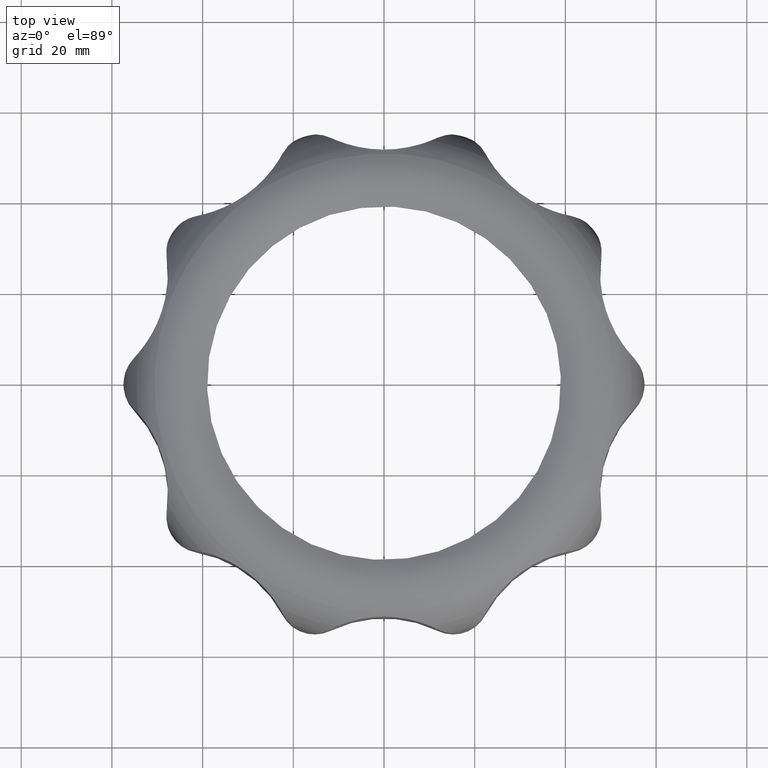
[diagram: clean part render]
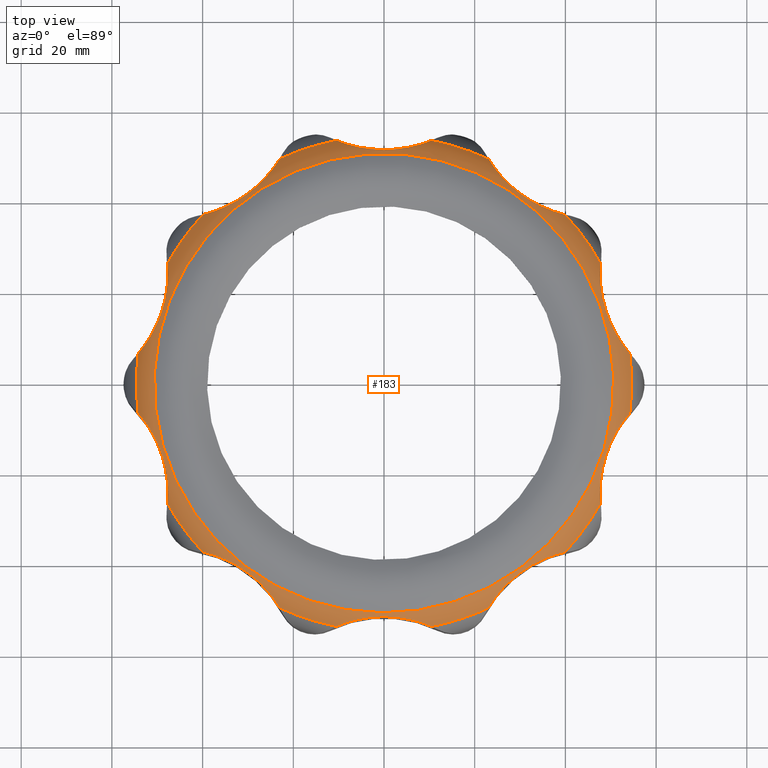
[diagram: same view with one face highlighted and labeled with its STEP entity id]
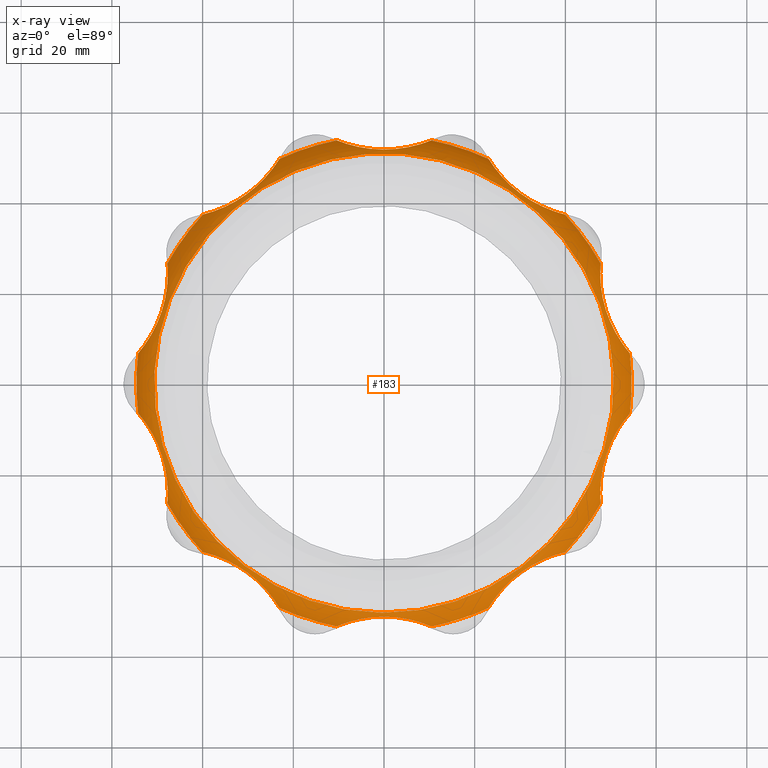
[diagram: x-ray of the same camera — body ghosted, the highlighted face saturated]
A machine part, top view. The second image highlights one B-rep face of the part: STEP entity #183.
The next image is the same camera in x-ray: the body ghosted, the highlighted face saturated — about 0% of this face is hidden behind the body in this view.
In plain terms, the highlighted toroidal blend (fillet) surface has major radius 41.9731 mm and minor (blend) radius 15 mm.
Its self-contained STEP definition (entity closure, byte-faithful):
#183 = ADVANCED_FACE( '', ( #2450, #2451 ), #2452, .T. );
#2450 = FACE_OUTER_BOUND( '', #6750, .T. );
#2451 = FACE_OUTER_BOUND( '', #6751, .T. );
#2452 = TOROIDAL_SURFACE( '', #6752, 41.9730830551567, 15.0000000000000 );
#6750 = EDGE_LOOP( '', ( #13595 ) );
#6751 = EDGE_LOOP( '', ( #13596, #13597, #13598, #13599, #13600, #13601, #13602, #13603, #13604, #13605, #13606, #13607, #13608, #13609, #13610, #13611, #13612, #13613, #13614, #13615 ) );
#6752 = AXIS2_PLACEMENT_3D( '', #13616, #13617, #13618 );
#13595 = ORIENTED_EDGE( '', *, *, #31998, .F. );
#13596 = ORIENTED_EDGE( '', *, *, #31940, .F. );
#13597 = ORIENTED_EDGE( '', *, *, #31928, .T. );
#13598 = ORIENTED_EDGE( '', *, *, #31997, .F. );
#13599 = ORIENTED_EDGE( '', *, *, #31999, .T. );
#13600 = ORIENTED_EDGE( '', *, *, #31993, .F. );
#13601 = ORIENTED_EDGE( '', *, *, #32000, .T. );
#13602 = ORIENTED_EDGE( '', *, *, #31986, .F. );
#13603 = ORIENTED_EDGE( '', *, *, #32001, .T. );
#13604 = ORIENTED_EDGE( '', *, *, #31978, .F. );
#13605 = ORIENTED_EDGE( '', *, *, #32002, .T. );
#13606 = ORIENTED_EDGE( '', *, *, #31970, .F. );
#13607 = ORIENTED_EDGE( '', *, *, #32003, .T. );
#13608 = ORIENTED_EDGE( '', *, *, #31962, .F. );
#13609 = ORIENTED_EDGE( '', *, *, #32004, .T. );
#13610 = ORIENTED_EDGE( '', *, *, #31954, .F. );
#13611 = ORIENTED_EDGE( '', *, *, #32005, .T. );
#13612 = ORIENTED_EDGE( '', *, *, #31947, .F. );
#13613 = ORIENTED_EDGE( '', *, *, #31933, .T. );
#13614 = ORIENTED_EDGE( '', *, *, #31946, .F. );
#13615 = ORIENTED_EDGE( '', *, *, #31919, .T. );
#13616 = CARTESIAN_POINT( '', ( 0.000000000000000, 0.000000000000000, -12.3384222550688 ) );
#13617 = DIRECTION( '', ( 1.89212087375327E-017, -5.82334926349610E-017, 1.00000000000000 ) );
#13618 = DIRECTION( '', ( 0.309016994374947, -0.951056516295154, -6.12303176911189E-017 ) );
#31919 = EDGE_CURVE( '', #40255, #40253, #40256, .T. );
#31928 = EDGE_CURVE( '', #40265, #40270, #40272, .T. );
#31933 = EDGE_CURVE( '', #40274, #40279, #40281, .T. );
#31940 = EDGE_CURVE( '', #40265, #40253, #40290, .T. );
#31946 = EDGE_CURVE( '', #40255, #40279, #40298, .T. );
#31947 = EDGE_CURVE( '', #40274, #40299, #40300, .T. );
#31954 = EDGE_CURVE( '', #40308, #40310, #40311, .T. );
#31962 = EDGE_CURVE( '', #40322, #40324, #40325, .T. );
#31970 = EDGE_CURVE( '', #40336, #40338, #40339, .T. );
#31978 = EDGE_CURVE( '', #40350, #40352, #40353, .T. );
#31986 = EDGE_CURVE( '', #40364, #40366, #40367, .T. );
#31993 = EDGE_CURVE( '', #40375, #40377, #40378, .T. );
#31997 = EDGE_CURVE( '', #40381, #40270, #40383, .T. );
#31998 = EDGE_CURVE( '', #40384, #40384, #40385, .T. );
#31999 = EDGE_CURVE( '', #40381, #40377, #40386, .T. );
#32000 = EDGE_CURVE( '', #40375, #40366, #40387, .T. );
#32001 = EDGE_CURVE( '', #40364, #40352, #40388, .T. );
#32002 = EDGE_CURVE( '', #40350, #40338, #40389, .T. );
#32003 = EDGE_CURVE( '', #40336, #40324, #40390, .T. );
#32004 = EDGE_CURVE( '', #40322, #40310, #40391, .T. );
#32005 = EDGE_CURVE( '', #40308, #40299, #40392, .T. );
#40253 = VERTEX_POINT( '', #57477 );
#40255 = VERTEX_POINT( '', #57482 );
#40256 = CIRCLE( '', #57483, 54.6040716320937 );
#40265 = VERTEX_POINT( '', #57539 );
#40270 = VERTEX_POINT( '', #57569 );
#40272 = CIRCLE( '', #57574, 54.6040716320937 );
#40274 = VERTEX_POINT( '', #57576 );
#40279 = VERTEX_POINT( '', #57606 );
#40281 = CIRCLE( '', #57611, 54.6040716320937 );
#40290 = B_SPLINE_CURVE_WITH_KNOTS( '', 3, ( #57657, #57658, #57659, #57660, #57661, #57662, #57663, #57664, #57665, #57666, #57667, #57668, #57669, #57670, #57671, #57672, #57673, #57674, #57675, #57676, #57677, #57678, #57679, #57680, #57681 ), .UNSPECIFIED., .F., .F., ( 4, 2, 2, 2, 2, 2, 1, 2, 2, 2, 2, 2, 4 ), ( 2.99828317109704E-007, 0.00285867238819549, 0.00428785866813469, 0.00571704494807388, 0.00857541750795226, 0.0100046037878915, 0.0114337900678306, 0.0128629763477698, 0.0142921626277090, 0.0171505351875874, 0.0185797214675266, 0.0200089077474658, 0.0228672803073442 ), .UNSPECIFIED. );
#40298 = B_SPLINE_CURVE_WITH_KNOTS( '', 3, ( #57714, #57715, #57716, #57717, #57718, #57719, #57720, #57721, #57722, #57723, #57724, #57725, #57726, #57727, #57728, #57729, #57730, #57731, #57732, #57733, #57734, #57735, #57736, #57737, #57738 ), .UNSPECIFIED., .F., .F., ( 4, 2, 2, 2, 2, 2, 1, 2, 2, 2, 2, 2, 4 ), ( 2.99828333229095E-007, 0.00285867205690382, 0.00428785817118912, 0.00571704428547441, 0.00857541651404502, 0.0100046026283303, 0.0114337887426156, 0.0128629748569010, 0.0142921609711863, 0.0171505331997569, 0.0185797193140422, 0.0200089054283275, 0.0228672776568981 ), .UNSPECIFIED. );
#40299 = VERTEX_POINT( '', #57739 );
#40300 = B_SPLINE_CURVE_WITH_KNOTS( '', 3, ( #57740, #57741, #57742, #57743, #57744, #57745, #57746, #57747, #57748, #57749, #57750, #57751, #57752, #57753, #57754, #57755, #57756, #57757, #57758, #57759, #57760, #57761, #57762, #57763, #57764 ), .UNSPECIFIED., .F., .F., ( 4, 2, 2, 2, 2, 2, 1, 2, 2, 2, 2, 2, 4 ), ( 2.99828333195303E-007, 0.00285867205690378, 0.00428785817118908, 0.00571704428547437, 0.00857541651404497, 0.0100046026283303, 0.0114337887426156, 0.0128629748569009, 0.0142921609711862, 0.0171505331997567, 0.0185797193140420, 0.0200089054283273, 0.0228672776568979 ), .UNSPECIFIED. );
#40308 = VERTEX_POINT( '', #57799 );
#40310 = VERTEX_POINT( '', #57804 );
#40311 = B_SPLINE_CURVE_WITH_KNOTS( '', 3, ( #57805, #57806, #57807, #57808, #57809, #57810, #57811, #57812, #57813, #57814, #57815, #57816, #57817, #57818, #57819, #57820, #57821, #57822, #57823, #57824, #57825, #57826, #57827, #57828, #57829 ), .UNSPECIFIED., .F., .F., ( 4, 2, 2, 2, 2, 2, 1, 2, 2, 2, 2, 2, 4 ), ( 2.99828317473172E-007, 0.00285867238819582, 0.00428785866813500, 0.00571704494807418, 0.00857541750795254, 0.0100046037878917, 0.0114337900678309, 0.0128629763477701, 0.0142921626277093, 0.0171505351875876, 0.0185797214675268, 0.0200089077474659, 0.0228672803073443 ), .UNSPECIFIED. );
#40322 = VERTEX_POINT( '', #57900 );
#40324 = VERTEX_POINT( '', #57905 );
#40325 = B_SPLINE_CURVE_WITH_KNOTS( '', 3, ( #57906, #57907, #57908, #57909, #57910, #57911, #57912, #57913, #57914, #57915, #57916, #57917, #57918, #57919, #57920, #57921, #57922, #57923, #57924, #57925, #57926, #57927, #57928, #57929, #57930 ), .UNSPECIFIED., .F., .F., ( 4, 2, 2, 2, 2, 2, 1, 2, 2, 2, 2, 2, 4 ), ( 2.99828322793871E-007, 0.00285867227384115, 0.00428785849660033, 0.00571704471935950, 0.00857541716487784, 0.0100046033876370, 0.0114337896103962, 0.0128629758331553, 0.0142921620559145, 0.0171505345014329, 0.0185797207241921, 0.0200089069469512, 0.0228672793924696 ), .UNSPECIFIED. );
#40336 = VERTEX_POINT( '', #58001 );
#40338 = VERTEX_POINT( '', #58006 );
#40339 = B_SPLINE_CURVE_WITH_KNOTS( '', 3, ( #58007, #58008, #58009, #58010, #58011, #58012, #58013, #58014, #58015, #58016, #58017, #58018, #58019, #58020, #58021, #58022, #58023, #58024, #58025, #58026, #58027, #58028, #58029, #58030, #58031 ), .UNSPECIFIED., .F., .F., ( 4, 2, 2, 2, 2, 2, 1, 2, 2, 2, 2, 2, 4 ), ( 2.99828316993370E-007, 0.00285867238819534, 0.00428785866813452, 0.00571704494807370, 0.00857541750795205, 0.0100046037878912, 0.0114337900678304, 0.0128629763477696, 0.0142921626277088, 0.0171505351875872, 0.0185797214675263, 0.0200089077474655, 0.0228672803073439 ), .UNSPECIFIED. );
#40350 = VERTEX_POINT( '', #58102 );
#40352 = VERTEX_POINT( '', #58107 );
#40353 = B_SPLINE_CURVE_WITH_KNOTS( '', 3, ( #58108, #58109, #58110, #58111, #58112, #58113, #58114, #58115, #58116, #58117, #58118, #58119, #58120, #58121, #58122, #58123, #58124, #58125, #58126, #58127, #58128, #58129, #58130, #58131, #58132 ), .UNSPECIFIED., .F., .F., ( 4, 2, 2, 2, 2, 2, 1, 2, 2, 2, 2, 2, 4 ), ( 2.99828333299476E-007, 0.00285867205690388, 0.00428785817118916, 0.00571704428547445, 0.00857541651404503, 0.0100046026283303, 0.0114337887426156, 0.0128629748569009, 0.0142921609711862, 0.0171505331997568, 0.0185797193140421, 0.0200089054283274, 0.0228672776568980 ), .UNSPECIFIED. );
#40364 = VERTEX_POINT( '', #58203 );
#40366 = VERTEX_POINT( '', #58208 );
#40367 = B_SPLINE_CURVE_WITH_KNOTS( '', 3, ( #58209, #58210, #58211, #58212, #58213, #58214, #58215, #58216, #58217, #58218, #58219, #58220, #58221, #58222, #58223, #58224, #58225, #58226, #58227, #58228, #58229, #58230, #58231, #58232, #58233 ), .UNSPECIFIED., .F., .F., ( 4, 2, 2, 2, 2, 2, 1, 2, 2, 2, 2, 2, 4 ), ( 2.99828333283905E-007, 0.00285867205690388, 0.00428785817118917, 0.00571704428547447, 0.00857541651404507, 0.0100046026283304, 0.0114337887426157, 0.0128629748569010, 0.0142921609711863, 0.0171505331997569, 0.0185797193140422, 0.0200089054283275, 0.0228672776568981 ), .UNSPECIFIED. );
#40375 = VERTEX_POINT( '', #58268 );
#40377 = VERTEX_POINT( '', #58273 );
#40378 = B_SPLINE_CURVE_WITH_KNOTS( '', 3, ( #58274, #58275, #58276, #58277, #58278, #58279, #58280, #58281, #58282, #58283, #58284, #58285, #58286, #58287, #58288, #58289, #58290, #58291, #58292, #58293, #58294, #58295, #58296, #58297, #58298 ), .UNSPECIFIED., .F., .F., ( 4, 2, 2, 2, 2, 2, 1, 2, 2, 2, 2, 2, 4 ), ( 2.99828317284512E-007, 0.00285867238819566, 0.00428785866813485, 0.00571704494807404, 0.00857541750795241, 0.0100046037878916, 0.0114337900678308, 0.0128629763477700, 0.0142921626277092, 0.0171505351875875, 0.0185797214675267, 0.0200089077474659, 0.0228672803073442 ), .UNSPECIFIED. );
#40381 = VERTEX_POINT( '', #58305 );
#40383 = B_SPLINE_CURVE_WITH_KNOTS( '', 3, ( #58310, #58311, #58312, #58313, #58314, #58315, #58316, #58317, #58318, #58319, #58320, #58321, #58322, #58323, #58324, #58325, #58326, #58327, #58328, #58329, #58330, #58331, #58332, #58333, #58334 ), .UNSPECIFIED., .F., .F., ( 4, 2, 2, 2, 2, 2, 1, 2, 2, 2, 2, 2, 4 ), ( 2.99828322700906E-007, 0.00285867227384097, 0.00428785849660011, 0.00571704471935925, 0.00857541716487752, 0.0100046033876367, 0.0114337896103958, 0.0128629758331550, 0.0142921620559141, 0.0171505345014324, 0.0185797207241916, 0.0200089069469507, 0.0228672793924690 ), .UNSPECIFIED. );
#40384 = VERTEX_POINT( '', #58335 );
#40385 = CIRCLE( '', #58336, 50.6578461129477 );
#40386 = CIRCLE( '', #58337, 54.6040716320937 );
#40387 = CIRCLE( '', #58338, 54.6040716320937 );
#40388 = CIRCLE( '', #58339, 54.6040716320937 );
#40389 = CIRCLE( '', #58340, 54.6040716320937 );
#40390 = CIRCLE( '', #58341, 54.6040716320937 );
#40391 = CIRCLE( '', #58342, 54.6040716320937 );
#40392 = CIRCLE( '', #58343, 54.6040716320937 );
#57477 = CARTESIAN_POINT( '', ( -47.7500747064636, 26.4865060800775, -4.24780252792265 ) );
#57482 = CARTESIAN_POINT( '', ( -39.9457480309389, 37.2282399940097, -4.24780252792265 ) );
#57483 = AXIS2_PLACEMENT_3D( '', #74403, #74404, #74405 );
#57539 = CARTESIAN_POINT( '', ( -54.1989996147472, 6.63875587466972, -4.24780252792270 ) );
#57569 = CARTESIAN_POINT( '', ( -54.1989995510681, -6.63875639454662, -4.24780252792270 ) );
#57574 = AXIS2_PLACEMENT_3D( '', #74409, #74410, #74411 );
#57576 = CARTESIAN_POINT( '', ( -10.4345788473336, 53.5978003567461, -4.24780252792265 ) );
#57606 = CARTESIAN_POINT( '', ( -23.0622449883734, 49.4948229100689, -4.24780252792270 ) );
#57611 = AXIS2_PLACEMENT_3D( '', #74412, #74413, #74414 );
#57657 = CARTESIAN_POINT( '', ( -54.1989996147471, 6.63875587466962, -4.24780252792266 ) );
#57658 = CARTESIAN_POINT( '', ( -53.7208593773604, 7.19396318632844, -3.61225612978648 ) );
#57659 = CARTESIAN_POINT( '', ( -53.2258120750429, 7.81470778294330, -3.08240889827171 ) );
#57660 = CARTESIAN_POINT( '', ( -52.4869430204636, 8.84273924504710, -2.41506273051538 ) );
#57661 = CARTESIAN_POINT( '', ( -52.2411665023909, 9.20165250428702, -2.21406914540625 ) );
#57662 = CARTESIAN_POINT( '', ( -51.7546376443555, 9.95262237334967, -1.85187803921903 ) );
#57663 = CARTESIAN_POINT( '', ( -51.5160411823993, 10.3415414595720, -1.69238300752714 ) );
#57664 = CARTESIAN_POINT( '', ( -50.8268523663201, 11.5329975792222, -1.27634069070289 ) );
#57665 = CARTESIAN_POINT( '', ( -50.3990291374893, 12.3659591733891, -1.07842472565419 ) );
#57666 = CARTESIAN_POINT( '', ( -49.8145796051292, 13.6731543022218, -0.880968779001265 ) );
#57667 = CARTESIAN_POINT( '', ( -49.6298534703620, 14.1176184552537, -0.832260588293812 ) );
#57668 = CARTESIAN_POINT( '', ( -49.2863123656773, 15.0106939058685, -0.768070653094223 ) );
#57669 = CARTESIAN_POINT( '', ( -48.9670044950927, 15.9115622100118, -0.736511588674265 ) );
#57670 = CARTESIAN_POINT( '', ( -48.6959349621179, 16.8279455449999, -0.768170203724751 ) );
#57671 = CARTESIAN_POINT( '', ( -48.4490758183094, 17.7521143826681, -0.832431800201938 ) );
#57672 = CARTESIAN_POINT( '', ( -48.3373340729019, 18.2201554525791, -0.881169731565907 ) );
#57673 = CARTESIAN_POINT( '', ( -48.0419930624103, 19.6207848217477, -1.07867686076916 ) );
#57674 = CARTESIAN_POINT( '', ( -47.8993609645618, 20.5421159972955, -1.27614566043670 ) );
#57675 = CARTESIAN_POINT( '', ( -47.7572770269267, 21.8995493180484, -1.68770865475104 ) );
#57676 = CARTESIAN_POINT( '', ( -47.7219165916782, 22.3478777835021, -1.84432545056509 ) );
#57677 = CARTESIAN_POINT( '', ( -47.6736849582215, 23.2344720828580, -2.20192377785726 ) );
#57678 = CARTESIAN_POINT( '', ( -47.6608344745040, 23.6753755234067, -2.40434584921162 ) );
#57679 = CARTESIAN_POINT( '', ( -47.6534740702648, 24.9578987505158, -3.07820527410415 ) );
#57680 = CARTESIAN_POINT( '', ( -47.6895740516455, 25.7560517842055, -3.61204866731732 ) );
#57681 = CARTESIAN_POINT( '', ( -47.7500747064636, 26.4865060800774, -4.24780252792283 ) );
#57714 = CARTESIAN_POINT( '', ( -39.9457480309388, 37.2282399940096, -4.24780252792273 ) );
#57715 = CARTESIAN_POINT( '', ( -39.2325818435899, 37.3963683786605, -3.61225623756197 ) );
#57716 = CARTESIAN_POINT( '', ( -38.4672157220130, 37.6075798105957, -3.08240909394329 ) );
#57717 = CARTESIAN_POINT( '', ( -37.2651965053875, 38.0049783946130, -2.41506303452085 ) );
#57718 = CARTESIAN_POINT( '', ( -36.8553952540020, 38.1508815033014, -2.21406948155710 ) );
#57719 = CARTESIAN_POINT( '', ( -36.0203762298607, 38.4724543852560, -1.85187843240963 ) );
#57720 = CARTESIAN_POINT( '', ( -35.5987467808562, 38.6468530451579, -1.69238342230856 ) );
#57721 = CARTESIAN_POINT( '', ( -34.3408611304174, 39.2056662335607, -1.27634116394998 ) );
#57722 = CARTESIAN_POINT( '', ( -33.5051424304037, 39.6280780963526, -1.07842522537797 ) );
#57723 = CARTESIAN_POINT( '', ( -32.2639629646110, 40.3420902754959, -0.880969304483962 ) );
#57724 = CARTESIAN_POINT( '', ( -31.8532669516743, 40.5930900061404, -0.832261118830795 ) );
#57725 = CARTESIAN_POINT( '', ( -31.0503998700153, 41.1136747708888, -0.768071190912752 ) );
#57726 = CARTESIAN_POINT( '', ( -30.2625573612004, 41.6548080181250, -0.736512130200482 ) );
#57727 = CARTESIAN_POINT( '', ( -29.5046209784071, 42.2368469597008, -0.768170741320444 ) );
#57728 = CARTESIAN_POINT( '', ( -28.7616950066976, 42.8394150081525, -0.832432329117783 ) );
#57729 = CARTESIAN_POINT( '', ( -28.3961864425053, 43.1523879892437, -0.881170252806051 ) );
#57730 = CARTESIAN_POINT( '', ( -27.3339813480271, 44.1119237457907, -1.07867735882224 ) );
#57731 = CARTESIAN_POINT( '', ( -26.6770447355724, 44.7734591935037, -1.27614613505918 ) );
#57732 = CARTESIAN_POINT( '', ( -25.7642172049791, 45.7881308307465, -1.68770906925754 ) );
#57733 = CARTESIAN_POINT( '', ( -25.4720891759768, 46.1300517853723, -1.84432584079491 ) );
#57734 = CARTESIAN_POINT( '', ( -24.9119419563493, 46.8189716922229, -2.20192410745437 ) );
#57735 = CARTESIAN_POINT( '', ( -24.6423891799372, 47.1681166851854, -2.40434613946776 ) );
#57736 = CARTESIAN_POINT( '', ( -23.8825862716308, 48.2013733153394, -3.07820546500126 ) );
#57737 = CARTESIAN_POINT( '', ( -23.4426491943042, 48.8683116444404, -3.61204877552087 ) );
#57738 = CARTESIAN_POINT( '', ( -23.0622449883733, 49.4948229100688, -4.24780252792266 ) );
#57739 = CARTESIAN_POINT( '', ( 10.4345785727653, 53.5978004101999, -4.24780252792265 ) );
#57740 = CARTESIAN_POINT( '', ( -10.4345788473336, 53.5978003567460, -4.24780252792268 ) );
#57741 = CARTESIAN_POINT( '', ( -9.75879189551458, 53.3146305132700, -3.61225623756192 ) );
#57742 = CARTESIAN_POINT( '', ( -9.01545073000378, 53.0356332360526, -3.08240909394325 ) );
#57743 = CARTESIAN_POINT( '', ( -7.80941172724877, 52.6506062817367, -2.41506303452082 ) );
#57744 = CARTESIAN_POINT( '', ( -7.39211585438182, 52.5277692464001, -2.21406948155708 ) );
#57745 = CARTESIAN_POINT( '', ( -6.52755547449347, 52.2971153094865, -1.85187843240961 ) );
#57746 = CARTESIAN_POINT( '', ( -6.08394112406319, 52.1903792193588, -1.69238342230854 ) );
#57747 = CARTESIAN_POINT( '', ( -4.73782810347644, 51.9031019579550, -1.27634116394997 ) );
#57748 = CARTESIAN_POINT( '', ( -3.81343000854015, 51.7536172113817, -1.07842522537796 ) );
#57749 = CARTESIAN_POINT( '', ( -2.38960889800891, 51.6017182203520, -0.880969304483961 ) );
#57750 = CARTESIAN_POINT( '', ( -1.90981490382248, 51.5633802109053, -0.832261118830797 ) );
#57751 = CARTESIAN_POINT( '', ( -0.954289742988950, 51.5126287073441, -0.768071190912756 ) );
#57752 = CARTESIAN_POINT( '', ( 0.00115837791355045, 51.4873324976635, -0.736512130200489 ) );
#57753 = CARTESIAN_POINT( '', ( 0.956455698236572, 51.5127080696982, -0.768170741320448 ) );
#57754 = CARTESIAN_POINT( '', ( 1.91167604703434, 51.5635149363405, -0.832432329117789 ) );
#57755 = CARTESIAN_POINT( '', ( 2.39133958951040, 51.6018748556618, -0.881170252806061 ) );
#57756 = CARTESIAN_POINT( '', ( 3.81468252842222, 51.7538071072660, -1.07867735882225 ) );
#57757 = CARTESIAN_POINT( '', ( 4.73499619139598, 51.9028628790700, -1.27614613505920 ) );
#57758 = CARTESIAN_POINT( '', ( 6.06989819941344, 52.1872029237787, -1.68770906925756 ) );
#57759 = CARTESIAN_POINT( '', ( 6.50721083345099, 52.2921142418153, -1.84432584079492 ) );
#57760 = CARTESIAN_POINT( '', ( 7.36531641357042, 52.5202158838069, -2.20192410745438 ) );
#57761 = CARTESIAN_POINT( '', ( 7.78861146770855, 52.6442409720934, -2.40434613946776 ) );
#57762 = CARTESIAN_POINT( '', ( 9.01063793994747, 53.0335622075472, -3.07820546500125 ) );
#57763 = CARTESIAN_POINT( '', ( 9.75857102455508, 53.3145381278322, -3.61204877552088 ) );
#57764 = CARTESIAN_POINT( '', ( 10.4345785727653, 53.5978004101997, -4.24780252792266 ) );
#57799 = CARTESIAN_POINT( '', ( 23.0622442615783, 49.4948232487208, -4.24780252792265 ) );
#57804 = CARTESIAN_POINT( '', ( 39.9457489697509, 37.2282389866682, -4.24780252792270 ) );
#57805 = CARTESIAN_POINT( '', ( 23.0622442615782, 49.4948232487208, -4.24780252792253 ) );
#57806 = CARTESIAN_POINT( '', ( 23.4425243307903, 48.8685163634899, -3.61225612978635 ) );
#57807 = CARTESIAN_POINT( '', ( 23.8799094913349, 48.2058777688595, -3.08240889827161 ) );
#57808 = CARTESIAN_POINT( '', ( 24.6293024123214, 47.1854923432161, -2.41506273051531 ) );
#57809 = CARTESIAN_POINT( '', ( 24.8947000835386, 46.8408346861031, -2.21406914540619 ) );
#57810 = CARTESIAN_POINT( '', ( 25.4585691819059, 46.1460557904481, -1.85187803921898 ) );
#57811 = CARTESIAN_POINT( '', ( 25.7547228497490, 45.7989544618577, -1.69238300752710 ) );
#57812 = CARTESIAN_POINT( '', ( 26.6748938941818, 44.7753167533652, -1.27634069070287 ) );
#57813 = CARTESIAN_POINT( '', ( 27.3348827942465, 44.1110333919330, -1.07842472565417 ) );
#57814 = CARTESIAN_POINT( '', ( 28.3974943965452, 43.1512433402133, -0.880968779001262 ) );
#57815 = CARTESIAN_POINT( '', ( 28.7631214089038, 42.8382113673573, -0.832260588293807 ) );
#57816 = CARTESIAN_POINT( '', ( 29.5063265928792, 42.2355088656115, -0.768070653094224 ) );
#57817 = CARTESIAN_POINT( '', ( 30.2644317022608, 41.6534454148117, -0.736511588674269 ) );
#57818 = CARTESIAN_POINT( '', ( 31.0521989491518, 41.1124649409712, -0.768170203724755 ) );
#57819 = CARTESIAN_POINT( '', ( 31.8548520709039, 40.5921040627910, -0.832431800201941 ) );
#57820 = CARTESIAN_POINT( '', ( 32.2654554806669, 40.3411987007894, -0.881169731565909 ) );
#57821 = CARTESIAN_POINT( '', ( 33.5062677738897, 39.6274944236247, -1.07867686076916 ) );
#57822 = CARTESIAN_POINT( '', ( 34.3384300476073, 39.2071362423387, -1.27614566043669 ) );
#57823 = CARTESIAN_POINT( '', ( 35.5855194983877, 38.6525364159990, -1.68770865475102 ) );
#57824 = CARTESIAN_POINT( '', ( 36.0009782305462, 38.4803655265017, -1.84432545056507 ) );
#57825 = CARTESIAN_POINT( '', ( 36.8292751201236, 38.1605218071125, -2.20192377785724 ) );
#57826 = CARTESIAN_POINT( '', ( 37.2446281916564, 38.0120536125801, -2.40434584921158 ) );
#57827 = CARTESIAN_POINT( '', ( 38.4621057719207, 37.6087319727211, -3.07820527410409 ) );
#57828 = CARTESIAN_POINT( '', ( 39.2323499222066, 37.3964222395617, -3.61204866731723 ) );
#57829 = CARTESIAN_POINT( '', ( 39.9457489697509, 37.2282389866680, -4.24780252792271 ) );
#57900 = CARTESIAN_POINT( '', ( 47.7500748172108, 26.4865058804211, -4.24780252792270 ) );
#57905 = CARTESIAN_POINT( '', ( 54.1989995510679, 6.63875639454658, -4.24780252792270 ) );
#57906 = CARTESIAN_POINT( '', ( 47.7500748172111, 26.4865058804210, -4.24780252792283 ) );
#57907 = CARTESIAN_POINT( '', ( 47.6895939196522, 25.7562899681113, -3.61225616698829 ) );
#57908 = CARTESIAN_POINT( '', ( 47.6539567685353, 24.9631155617357, -3.08240896581328 ) );
#57909 = CARTESIAN_POINT( '', ( 47.6604608906761, 23.6971243502375, -2.41506283545137 ) );
#57910 = CARTESIAN_POINT( '', ( 47.6725874346356, 23.2622936279779, -2.21406926143810 ) );
#57911 = CARTESIAN_POINT( '', ( 47.7203863389860, 22.3687717900376, -1.85187817493972 ) );
#57912 = CARTESIAN_POINT( '', ( 47.7559586514067, 21.9138861744979, -1.69238315070048 ) );
#57913 = CARTESIAN_POINT( '', ( 47.8987135249565, 20.5448829567104, -1.27634085405726 ) );
#57914 = CARTESIAN_POINT( '', ( 48.0421998007444, 19.6195347247742, -1.07842489814771 ) );
#57915 = CARTESIAN_POINT( '', ( 48.3377202047876, 18.2184608944285, -0.880968960386169 ) );
#57916 = CARTESIAN_POINT( '', ( 48.4495230928806, 17.7503025604069, -0.832260771423346 ) );
#57917 = CARTESIAN_POINT( '', ( 48.6965290699234, 16.8258609839224, -0.768070838737172 ) );
#57918 = CARTESIAN_POINT( '', ( 48.9677206674672, 15.9093587944176, -0.736511775597011 ) );
#57919 = CARTESIAN_POINT( '', ( 49.2870574018003, 15.0086584652056, -0.768170389290752 ) );
#57920 = CARTESIAN_POINT( '', ( 49.6305569536754, 14.1158900419206, -0.832431982771837 ) );
#57921 = CARTESIAN_POINT( '', ( 49.8152636095188, 13.6715567321255, -0.881169911486326 ) );
#57922 = CARTESIAN_POINT( '', ( 50.3995969704440, 12.3648267203978, -1.07867703268590 ) );
#57923 = CARTESIAN_POINT( '', ( 50.8257500334504, 11.5356171256501, -1.27614582426571 ) );
#57924 = CARTESIAN_POINT( '', ( 51.5086809597439, 10.3539156972554, -1.68770879782933 ) );
#57925 = CARTESIAN_POINT( '', ( 51.7435946124965, 9.97042602043069, -1.84432558526360 ) );
#57926 = CARTESIAN_POINT( '', ( 52.2257014248079, 9.22480634804762, -2.20192389162669 ) );
#57927 = CARTESIAN_POINT( '', ( 52.4744616880940, 8.86055466063358, -2.40434594940144 ) );
#57928 = CARTESIAN_POINT( '', ( 53.2223551969339, 7.81864525657133, -3.07820533999742 ) );
#57929 = CARTESIAN_POINT( '', ( 53.7207032528572, 7.19414493466369, -3.61204870466658 ) );
#57930 = CARTESIAN_POINT( '', ( 54.1989995510681, 6.63875639454660, -4.24780252792256 ) );
#58001 = CARTESIAN_POINT( '', ( 54.1989996147473, -6.63875587466969, -4.24780252792270 ) );
#58006 = CARTESIAN_POINT( '', ( 47.7500747064637, -26.4865060800771, -4.24780252792270 ) );
#58007 = CARTESIAN_POINT( '', ( 54.1989996147472, -6.63875587466956, -4.24780252792268 ) );
#58008 = CARTESIAN_POINT( '', ( 53.7208593773605, -7.19396318632837, -3.61225612978650 ) );
#58009 = CARTESIAN_POINT( '', ( 53.2258120750429, -7.81470778294322, -3.08240889827173 ) );
#58010 = CARTESIAN_POINT( '', ( 52.4869430204637, -8.84273924504700, -2.41506273051541 ) );
#58011 = CARTESIAN_POINT( '', ( 52.2411665023910, -9.20165250428693, -2.21406914540628 ) );
#58012 = CARTESIAN_POINT( '', ( 51.7546376443556, -9.95262237334957, -1.85187803921905 ) );
#58013 = CARTESIAN_POINT( '', ( 51.5160411823993, -10.3415414595719, -1.69238300752716 ) );
#58014 = CARTESIAN_POINT( '', ( 50.8268523663201, -11.5329975792221, -1.27634069070291 ) );
#58015 = CARTESIAN_POINT( '', ( 50.3990291374894, -12.3659591733890, -1.07842472565420 ) );
#58016 = CARTESIAN_POINT( '', ( 49.8145796051292, -13.6731543022217, -0.880968779001268 ) );
#58017 = CARTESIAN_POINT( '', ( 49.6298534703620, -14.1176184552536, -0.832260588293811 ) );
#58018 = CARTESIAN_POINT( '', ( 49.2863123656774, -15.0106939058683, -0.768070653094216 ) );
#58019 = CARTESIAN_POINT( '', ( 48.9670044950928, -15.9115622100116, -0.736511588674260 ) );
#58020 = CARTESIAN_POINT( '', ( 48.6959349621179, -16.8279455449997, -0.768170203724727 ) );
#58021 = CARTESIAN_POINT( '', ( 48.4490758183095, -17.7521143826679, -0.832431800201903 ) );
#58022 = CARTESIAN_POINT( '', ( 48.3373340729019, -18.2201554525790, -0.881169731565880 ) );
#58023 = CARTESIAN_POINT( '', ( 48.0419930624103, -19.6207848217476, -1.07867686076912 ) );
#58024 = CARTESIAN_POINT( '', ( 47.8993609645618, -20.5421159972954, -1.27614566043664 ) );
#58025 = CARTESIAN_POINT( '', ( 47.7572770269268, -21.8995493180482, -1.68770865475096 ) );
#58026 = CARTESIAN_POINT( '', ( 47.7219165916782, -22.3478777835019, -1.84432545056501 ) );
#58027 = CARTESIAN_POINT( '', ( 47.6736849582215, -23.2344720828578, -2.20192377785716 ) );
#58028 = CARTESIAN_POINT( '', ( 47.6608344745040, -23.6753755234064, -2.40434584921152 ) );
#58029 = CARTESIAN_POINT( '', ( 47.6534740702647, -24.9578987505156, -3.07820527410402 ) );
#58030 = CARTESIAN_POINT( '', ( 47.6895740516455, -25.7560517842053, -3.61204866731715 ) );
#58031 = CARTESIAN_POINT( '', ( 47.7500747064636, -26.4865060800772, -4.24780252792265 ) );
#58102 = CARTESIAN_POINT( '', ( 39.9457480309387, -37.2282399940097, -4.24780252792270 ) );
#58107 = CARTESIAN_POINT( '', ( 23.0622449883733, -49.4948229100688, -4.24780252792270 ) );
#58108 = CARTESIAN_POINT( '', ( 39.9457480309387, -37.2282399940096, -4.24780252792265 ) );
#58109 = CARTESIAN_POINT( '', ( 39.2325818435898, -37.3963683786605, -3.61225623756190 ) );
#58110 = CARTESIAN_POINT( '', ( 38.4672157220130, -37.6075798105957, -3.08240909394324 ) );
#58111 = CARTESIAN_POINT( '', ( 37.2651965053875, -38.0049783946130, -2.41506303452081 ) );
#58112 = CARTESIAN_POINT( '', ( 36.8553952540019, -38.1508815033015, -2.21406948155707 ) );
#58113 = CARTESIAN_POINT( '', ( 36.0203762298607, -38.4724543852560, -1.85187843240960 ) );
#58114 = CARTESIAN_POINT( '', ( 35.5987467808561, -38.6468530451579, -1.69238342230852 ) );
#58115 = CARTESIAN_POINT( '', ( 34.3408611304173, -39.2056662335607, -1.27634116394995 ) );
#58116 = CARTESIAN_POINT( '', ( 33.5051424304036, -39.6280780963526, -1.07842522537795 ) );
#58117 = CARTESIAN_POINT( '', ( 32.2639629646109, -40.3420902754959, -0.880969304483945 ) );
#58118 = CARTESIAN_POINT( '', ( 31.8532669516743, -40.5930900061404, -0.832261118830788 ) );
#58119 = CARTESIAN_POINT( '', ( 31.0503998700153, -41.1136747708888, -0.768071190912747 ) );
#58120 = CARTESIAN_POINT( '', ( 30.2625573846829, -41.6548080500282, -0.736512266445545 ) );
#58121 = CARTESIAN_POINT( '', ( 29.5046209784070, -42.2368469597008, -0.768170741320433 ) );
#58122 = CARTESIAN_POINT( '', ( 28.7616950066976, -42.8394150081525, -0.832432329117773 ) );
#58123 = CARTESIAN_POINT( '', ( 28.3961864425053, -43.1523879892437, -0.881170252806049 ) );
#58124 = CARTESIAN_POINT( '', ( 27.3339813480271, -44.1119237457907, -1.07867735882223 ) );
#58125 = CARTESIAN_POINT( '', ( 26.6770447355724, -44.7734591935037, -1.27614613505918 ) );
#58126 = CARTESIAN_POINT( '', ( 25.7642172049791, -45.7881308307465, -1.68770906925754 ) );
#58127 = CARTESIAN_POINT( '', ( 25.4720891759768, -46.1300517853723, -1.84432584079489 ) );
#58128 = CARTESIAN_POINT( '', ( 24.9119419563493, -46.8189716922229, -2.20192410745435 ) );
#58129 = CARTESIAN_POINT( '', ( 24.6423891799373, -47.1681166851854, -2.40434613946775 ) );
#58130 = CARTESIAN_POINT( '', ( 23.8825862716308, -48.2013733153394, -3.07820546500124 ) );
#58131 = CARTESIAN_POINT( '', ( 23.4426491943042, -48.8683116444404, -3.61204877552085 ) );
#58132 = CARTESIAN_POINT( '', ( 23.0622449883733, -49.4948229100688, -4.24780252792264 ) );
#58203 = CARTESIAN_POINT( '', ( 10.4345788473335, -53.5978003567460, -4.24780252792270 ) );
#58208 = CARTESIAN_POINT( '', ( -10.4345785727654, -53.5978004101998, -4.24780252792270 ) );
#58209 = CARTESIAN_POINT( '', ( 10.4345788473336, -53.5978003567460, -4.24780252792263 ) );
#58210 = CARTESIAN_POINT( '', ( 9.75879189551455, -53.3146305132699, -3.61225623756189 ) );
#58211 = CARTESIAN_POINT( '', ( 9.01545073000375, -53.0356332360525, -3.08240909394321 ) );
#58212 = CARTESIAN_POINT( '', ( 7.80941172724873, -52.6506062817367, -2.41506303452078 ) );
#58213 = CARTESIAN_POINT( '', ( 7.39211585438177, -52.5277692464001, -2.21406948155704 ) );
#58214 = CARTESIAN_POINT( '', ( 6.52755547449342, -52.2971153094865, -1.85187843240958 ) );
#58215 = CARTESIAN_POINT( '', ( 6.08394112406314, -52.1903792193588, -1.69238342230851 ) );
#58216 = CARTESIAN_POINT( '', ( 4.73782810347638, -51.9031019579550, -1.27634116394994 ) );
#58217 = CARTESIAN_POINT( '', ( 3.81343000854008, -51.7536172113817, -1.07842522537795 ) );
#58218 = CARTESIAN_POINT( '', ( 2.38960889800885, -51.6017182203520, -0.880969304483951 ) );
#58219 = CARTESIAN_POINT( '', ( 1.90981490382241, -51.5633802109053, -0.832261118830784 ) );
#58220 = CARTESIAN_POINT( '', ( 0.954289742988871, -51.5126287073441, -0.768071190912747 ) );
#58221 = CARTESIAN_POINT( '', ( -0.00115837791363494, -51.4873324976635, -0.736512130200483 ) );
#58222 = CARTESIAN_POINT( '', ( -0.956455698236657, -51.5127080696982, -0.768170741320442 ) );
#58223 = CARTESIAN_POINT( '', ( -1.91167604703443, -51.5635149363405, -0.832432329117787 ) );
#58224 = CARTESIAN_POINT( '', ( -2.39133958951047, -51.6018748556618, -0.881170252806062 ) );
#58225 = CARTESIAN_POINT( '', ( -3.81468252842230, -51.7538071072660, -1.07867735882225 ) );
#58226 = CARTESIAN_POINT( '', ( -4.73499619139607, -51.9028628790700, -1.27614613505921 ) );
#58227 = CARTESIAN_POINT( '', ( -6.06989819941354, -52.1872029237787, -1.68770906925758 ) );
#58228 = CARTESIAN_POINT( '', ( -6.50721083345109, -52.2921142418153, -1.84432584079494 ) );
#58229 = CARTESIAN_POINT( '', ( -7.36531641357052, -52.5202158838069, -2.20192410745441 ) );
#58230 = CARTESIAN_POINT( '', ( -7.78861146770865, -52.6442409720934, -2.40434613946781 ) );
#58231 = CARTESIAN_POINT( '', ( -9.01063793994759, -53.0335622075472, -3.07820546500131 ) );
#58232 = CARTESIAN_POINT( '', ( -9.75857102455520, -53.3145381278322, -3.61204877552094 ) );
#58233 = CARTESIAN_POINT( '', ( -10.4345785727654, -53.5978004101998, -4.24780252792274 ) );
#58268 = CARTESIAN_POINT( '', ( -23.0622442615781, -49.4948232487210, -4.24780252792270 ) );
#58273 = CARTESIAN_POINT( '', ( -39.9457489697509, -37.2282389866682, -4.24780252792270 ) );
#58274 = CARTESIAN_POINT( '', ( -23.0622442615781, -49.4948232487210, -4.24780252792266 ) );
#58275 = CARTESIAN_POINT( '', ( -23.4425243307902, -48.8685163634901, -3.61225612978647 ) );
#58276 = CARTESIAN_POINT( '', ( -23.8799094913348, -48.2058777688597, -3.08240889827172 ) );
#58277 = CARTESIAN_POINT( '', ( -24.6293024123213, -47.1854923432162, -2.41506273051540 ) );
#58278 = CARTESIAN_POINT( '', ( -24.8947000835385, -46.8408346861032, -2.21406914540626 ) );
#58279 = CARTESIAN_POINT( '', ( -25.4585691819058, -46.1460557904482, -1.85187803921904 ) );
#58280 = CARTESIAN_POINT( '', ( -25.7547228497489, -45.7989544618578, -1.69238300752715 ) );
#58281 = CARTESIAN_POINT( '', ( -26.6748938941817, -44.7753167533653, -1.27634069070290 ) );
#58282 = CARTESIAN_POINT( '', ( -27.3348827942464, -44.1110333919331, -1.07842472565419 ) );
#58283 = CARTESIAN_POINT( '', ( -28.3974943965451, -43.1512433402134, -0.880968779001262 ) );
#58284 = CARTESIAN_POINT( '', ( -28.7631214089036, -42.8382113673574, -0.832260588293817 ) );
#58285 = CARTESIAN_POINT( '', ( -29.5063265928791, -42.2355088656116, -0.768070653094224 ) );
#58286 = CARTESIAN_POINT( '', ( -30.2644317253450, -41.6534454470025, -0.736511724913944 ) );
#58287 = CARTESIAN_POINT( '', ( -31.0521989491517, -41.1124649409713, -0.768170203724737 ) );
#58288 = CARTESIAN_POINT( '', ( -31.8548520709038, -40.5921040627911, -0.832431800201917 ) );
#58289 = CARTESIAN_POINT( '', ( -32.2654554806668, -40.3411987007894, -0.881169731565886 ) );
#58290 = CARTESIAN_POINT( '', ( -33.5062677738895, -39.6274944236247, -1.07867686076913 ) );
#58291 = CARTESIAN_POINT( '', ( -34.3384300476072, -39.2071362423388, -1.27614566043665 ) );
#58292 = CARTESIAN_POINT( '', ( -35.5855194983876, -38.6525364159990, -1.68770865475098 ) );
#58293 = CARTESIAN_POINT( '', ( -36.0009782305462, -38.4803655265017, -1.84432545056503 ) );
#58294 = CARTESIAN_POINT( '', ( -36.8292751201235, -38.1605218071125, -2.20192377785719 ) );
#58295 = CARTESIAN_POINT( '', ( -37.2446281916563, -38.0120536125802, -2.40434584921152 ) );
#58296 = CARTESIAN_POINT( '', ( -38.4621057719207, -37.6087319727210, -3.07820527410403 ) );
#58297 = CARTESIAN_POINT( '', ( -39.2323499222065, -37.3964222395617, -3.61204866731717 ) );
#58298 = CARTESIAN_POINT( '', ( -39.9457489697508, -37.2282389866680, -4.24780252792265 ) );
#58305 = CARTESIAN_POINT( '', ( -47.7500748172111, -26.4865058804206, -4.24780252792270 ) );
#58310 = CARTESIAN_POINT( '', ( -47.7500748172111, -26.4865058804207, -4.24780252792262 ) );
#58311 = CARTESIAN_POINT( '', ( -47.6895939196522, -25.7562899681110, -3.61225616698812 ) );
#58312 = CARTESIAN_POINT( '', ( -47.6539567685353, -24.9631155617354, -3.08240896581314 ) );
#58313 = CARTESIAN_POINT( '', ( -47.6604608906762, -23.6971243502372, -2.41506283545127 ) );
#58314 = CARTESIAN_POINT( '', ( -47.6725874346357, -23.2622936279777, -2.21406926143800 ) );
#58315 = CARTESIAN_POINT( '', ( -47.7203863389861, -22.3687717900373, -1.85187817493964 ) );
#58316 = CARTESIAN_POINT( '', ( -47.7559586514067, -21.9138861744977, -1.69238315070043 ) );
#58317 = CARTESIAN_POINT( '', ( -47.8987135249565, -20.5448829567101, -1.27634085405723 ) );
#58318 = CARTESIAN_POINT( '', ( -48.0421998007445, -19.6195347247740, -1.07842489814769 ) );
#58319 = CARTESIAN_POINT( '', ( -48.3377202047876, -18.2184608944283, -0.880968960386172 ) );
#58320 = CARTESIAN_POINT( '', ( -48.4495230928807, -17.7503025604066, -0.832260771423349 ) );
#58321 = CARTESIAN_POINT( '', ( -48.6965290699235, -16.8258609839222, -0.768070838737187 ) );
#58322 = CARTESIAN_POINT( '', ( -48.9677206674673, -15.9093587944174, -0.736511775597035 ) );
#58323 = CARTESIAN_POINT( '', ( -49.2870574018004, -15.0086584652055, -0.768170389290786 ) );
#58324 = CARTESIAN_POINT( '', ( -49.6305569536756, -14.1158900419204, -0.832431982771879 ) );
#58325 = CARTESIAN_POINT( '', ( -49.8152636095189, -13.6715567321254, -0.881169911486367 ) );
#58326 = CARTESIAN_POINT( '', ( -50.3995969704441, -12.3648267203977, -1.07867703268596 ) );
#58327 = CARTESIAN_POINT( '', ( -50.8257500334504, -11.5356171256500, -1.27614582426577 ) );
#58328 = CARTESIAN_POINT( '', ( -51.5086809597441, -10.3539156972553, -1.68770879782940 ) );
#58329 = CARTESIAN_POINT( '', ( -51.7435946124966, -9.97042602043059, -1.84432558526368 ) );
#58330 = CARTESIAN_POINT( '', ( -52.2257014248080, -9.22480634804753, -2.20192389162679 ) );
#58331 = CARTESIAN_POINT( '', ( -52.4744616880941, -8.86055466063354, -2.40434594940150 ) );
#58332 = CARTESIAN_POINT( '', ( -53.2223551969340, -7.81864525657129, -3.07820533999749 ) );
#58333 = CARTESIAN_POINT( '', ( -53.7207032528573, -7.19414493466367, -3.61204870466666 ) );
#58334 = CARTESIAN_POINT( '', ( -54.1989995510681, -6.63875639454659, -4.24780252792264 ) );
#58335 = CARTESIAN_POINT( '', ( 15.6541353473317, -48.1784746471960, -0.108340872264051 ) );
#58336 = AXIS2_PLACEMENT_3D( '', #74438, #74439, #74440 );
#58337 = AXIS2_PLACEMENT_3D( '', #74441, #74442, #74443 );
#58338 = AXIS2_PLACEMENT_3D( '', #74444, #74445, #74446 );
#58339 = AXIS2_PLACEMENT_3D( '', #74447, #74448, #74449 );
#58340 = AXIS2_PLACEMENT_3D( '', #74450, #74451, #74452 );
#58341 = AXIS2_PLACEMENT_3D( '', #74453, #74454, #74455 );
#58342 = AXIS2_PLACEMENT_3D( '', #74456, #74457, #74458 );
#58343 = AXIS2_PLACEMENT_3D( '', #74459, #74460, #74461 );
#74403 = CARTESIAN_POINT( '', ( 0.000000000000000, 0.000000000000000, -4.24780252792270 ) );
#74404 = DIRECTION( '', ( 1.89212087375327E-017, -5.82334926349610E-017, 1.00000000000000 ) );
#74405 = DIRECTION( '', ( 0.309016994374947, -0.951056516295154, -6.12303176911189E-017 ) );
#74409 = CARTESIAN_POINT( '', ( 0.000000000000000, 0.000000000000000, -4.24780252792270 ) );
#74410 = DIRECTION( '', ( 1.89212087375327E-017, -5.82334926349610E-017, 1.00000000000000 ) );
#74411 = DIRECTION( '', ( 0.309016994374947, -0.951056516295154, -6.12303176911189E-017 ) );
#74412 = CARTESIAN_POINT( '', ( 0.000000000000000, 0.000000000000000, -4.24780252792270 ) );
#74413 = DIRECTION( '', ( 1.89212087375327E-017, -5.82334926349610E-017, 1.00000000000000 ) );
#74414 = DIRECTION( '', ( 0.309016994374947, -0.951056516295154, -6.12303176911189E-017 ) );
#74438 = CARTESIAN_POINT( '', ( 0.000000000000000, 0.000000000000000, -0.108340872264048 ) );
#74439 = DIRECTION( '', ( 1.89212087375327E-017, -5.82334926349610E-017, 1.00000000000000 ) );
#74440 = DIRECTION( '', ( 0.309016994374947, -0.951056516295154, -6.12303176911189E-017 ) );
#74441 = CARTESIAN_POINT( '', ( 0.000000000000000, 0.000000000000000, -4.24780252792270 ) );
#74442 = DIRECTION( '', ( 1.89212087375327E-017, -5.82334926349610E-017, 1.00000000000000 ) );
#74443 = DIRECTION( '', ( 0.309016994374947, -0.951056516295154, -6.12303176911189E-017 ) );
#74444 = CARTESIAN_POINT( '', ( 0.000000000000000, 0.000000000000000, -4.24780252792270 ) );
#74445 = DIRECTION( '', ( 1.89212087375327E-017, -5.82334926349610E-017, 1.00000000000000 ) );
#74446 = DIRECTION( '', ( 0.309016994374947, -0.951056516295154, -6.12303176911189E-017 ) );
#74447 = CARTESIAN_POINT( '', ( 0.000000000000000, 0.000000000000000, -4.24780252792270 ) );
#74448 = DIRECTION( '', ( 1.89212087375327E-017, -5.82334926349610E-017, 1.00000000000000 ) );
#74449 = DIRECTION( '', ( 0.309016994374947, -0.951056516295154, -6.12303176911189E-017 ) );
#74450 = CARTESIAN_POINT( '', ( 0.000000000000000, 0.000000000000000, -4.24780252792270 ) );
#74451 = DIRECTION( '', ( 1.89212087375327E-017, -5.82334926349610E-017, 1.00000000000000 ) );
#74452 = DIRECTION( '', ( 0.309016994374947, -0.951056516295154, -6.12303176911189E-017 ) );
#74453 = CARTESIAN_POINT( '', ( 0.000000000000000, 0.000000000000000, -4.24780252792270 ) );
#74454 = DIRECTION( '', ( 1.89212087375327E-017, -5.82334926349610E-017, 1.00000000000000 ) );
#74455 = DIRECTION( '', ( 0.309016994374947, -0.951056516295154, -6.12303176911189E-017 ) );
#74456 = CARTESIAN_POINT( '', ( 0.000000000000000, 0.000000000000000, -4.24780252792270 ) );
#74457 = DIRECTION( '', ( 1.89212087375327E-017, -5.82334926349610E-017, 1.00000000000000 ) );
#74458 = DIRECTION( '', ( 0.309016994374947, -0.951056516295154, -6.12303176911189E-017 ) );
#74459 = CARTESIAN_POINT( '', ( 0.000000000000000, 0.000000000000000, -4.24780252792270 ) );
#74460 = DIRECTION( '', ( 1.89212087375327E-017, -5.82334926349610E-017, 1.00000000000000 ) );
#74461 = DIRECTION( '', ( 0.309016994374947, -0.951056516295154, -6.12303176911189E-017 ) );